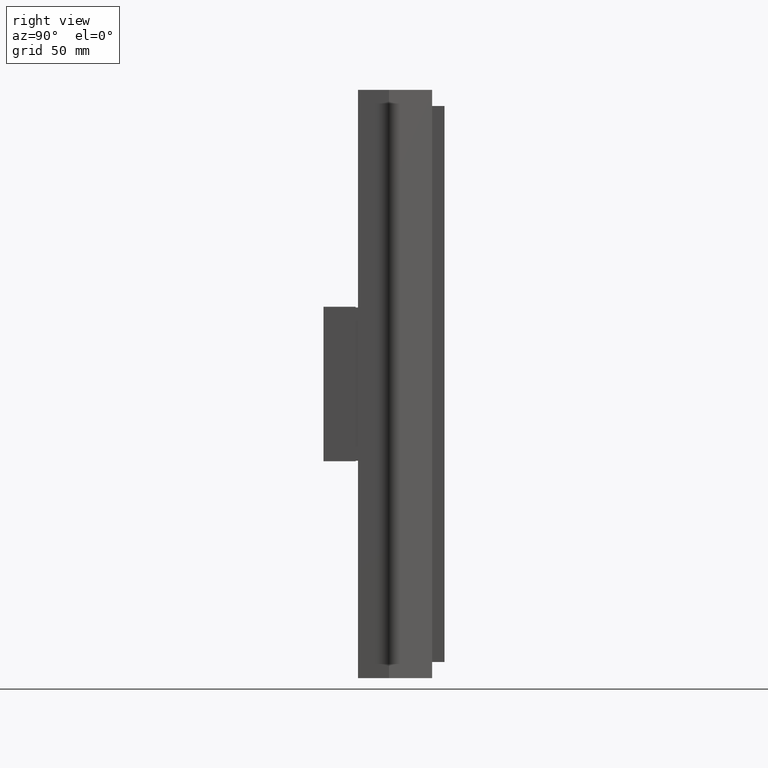
[diagram: clean part render]
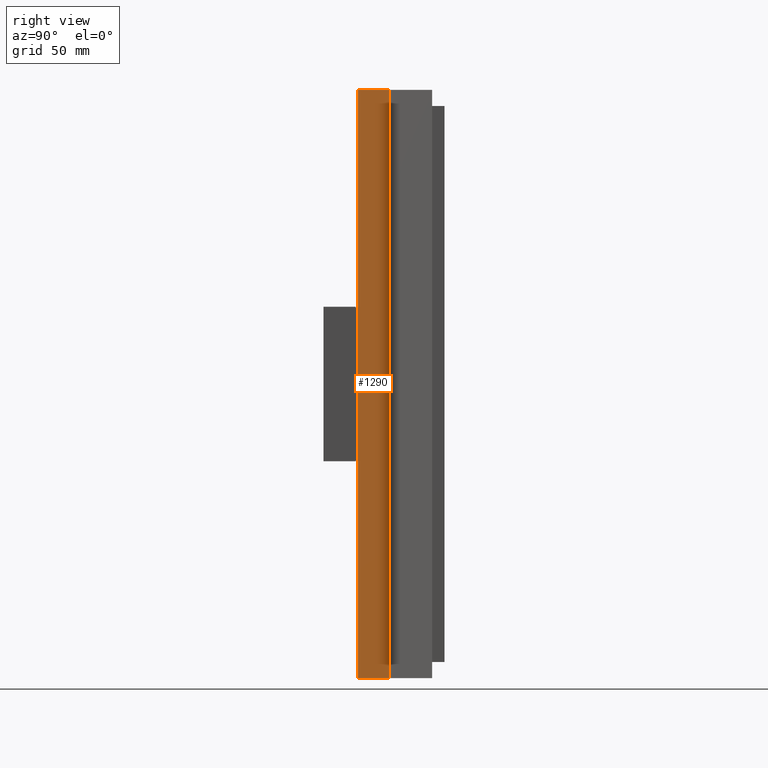
[diagram: same view with one face highlighted and labeled with its STEP entity id]
A machine part, right view. The second image highlights one B-rep face of the part: STEP entity #1290.
In plain terms, the highlighted planar face has unit normal (-1, 0, 0).
Its self-contained STEP definition (entity closure, byte-faithful):
#86 = VECTOR ( 'NONE', #1406, 1000.000000000000000 ) ;
#136 = CARTESIAN_POINT ( 'NONE',  ( 20.88361753920343500, -34.99999999999998600, 238.0000000000000000 ) ) ;
#413 = VERTEX_POINT ( 'NONE', #1110 ) ;
#430 = ORIENTED_EDGE ( 'NONE', *, *, #2039, .F. ) ;
#472 = ORIENTED_EDGE ( 'NONE', *, *, #2876, .F. ) ;
#500 = DIRECTION ( 'NONE',  ( -0.0000000000000000000, 1.000000000000000000, -0.0000000000000000000 ) ) ;
#532 = EDGE_CURVE ( 'NONE', #1325, #829, #1178, .T. ) ;
#829 = VERTEX_POINT ( 'NONE', #2090 ) ;
#1086 = CARTESIAN_POINT ( 'NONE',  ( 20.88361753920343500, -34.99999999999998600, -238.0000000000000000 ) ) ;
#1110 = CARTESIAN_POINT ( 'NONE',  ( 20.88361753920343500, -34.99999999999998600, 238.0000000000000000 ) ) ;
#1120 = ORIENTED_EDGE ( 'NONE', *, *, #2830, .T. ) ;
#1176 = CARTESIAN_POINT ( 'NONE',  ( 20.88361753920343500, -34.99999999999998600, 238.0000000000000000 ) ) ;
#1178 = LINE ( 'NONE', #1086, #1199 ) ;
#1199 = VECTOR ( 'NONE', #500, 1000.000000000000000 ) ;
#1290 = ADVANCED_FACE ( 'NONE', ( #2302 ), #1348, .F. ) ;
#1325 = VERTEX_POINT ( 'NONE', #2803 ) ;
#1348 = PLANE ( 'NONE',  #1489 ) ;
#1355 = EDGE_LOOP ( 'NONE', ( #2102, #472, #430, #1120 ) ) ;
#1406 = DIRECTION ( 'NONE',  ( -0.0000000000000000000, -0.0000000000000000000, -1.000000000000000000 ) ) ;
#1439 = LINE ( 'NONE', #2705, #86 ) ;
#1489 = AXIS2_PLACEMENT_3D ( 'NONE', #1176, #2367, #2913 ) ;
#1521 = CARTESIAN_POINT ( 'NONE',  ( 20.88361753920343500, -34.99999999999998600, 238.0000000000000000 ) ) ;
#1616 = VERTEX_POINT ( 'NONE', #1844 ) ;
#1635 = LINE ( 'NONE', #1521, #2586 ) ;
#1729 = DIRECTION ( 'NONE',  ( -0.0000000000000000000, -0.0000000000000000000, -1.000000000000000000 ) ) ;
#1844 = CARTESIAN_POINT ( 'NONE',  ( 20.88361753920343500, -59.99999999999998600, 238.0000000000000000 ) ) ;
#2039 = EDGE_CURVE ( 'NONE', #1616, #413, #2597, .T. ) ;
#2090 = CARTESIAN_POINT ( 'NONE',  ( 20.88361753920343500, -34.99999999999998600, -238.0000000000000000 ) ) ;
#2102 = ORIENTED_EDGE ( 'NONE', *, *, #532, .T. ) ;
#2302 = FACE_OUTER_BOUND ( 'NONE', #1355, .T. ) ;
#2367 = DIRECTION ( 'NONE',  ( -1.000000000000000000, 0.0000000000000000000, 0.0000000000000000000 ) ) ;
#2432 = VECTOR ( 'NONE', #2661, 1000.000000000000000 ) ;
#2586 = VECTOR ( 'NONE', #1729, 1000.000000000000000 ) ;
#2597 = LINE ( 'NONE', #136, #2432 ) ;
#2661 = DIRECTION ( 'NONE',  ( -0.0000000000000000000, 1.000000000000000000, -0.0000000000000000000 ) ) ;
#2705 = CARTESIAN_POINT ( 'NONE',  ( 20.88361753920343500, -59.99999999999998600, 238.0000000000000000 ) ) ;
#2803 = CARTESIAN_POINT ( 'NONE',  ( 20.88361753920343500, -59.99999999999998600, -238.0000000000000000 ) ) ;
#2830 = EDGE_CURVE ( 'NONE', #1616, #1325, #1439, .T. ) ;
#2876 = EDGE_CURVE ( 'NONE', #413, #829, #1635, .T. ) ;
#2913 = DIRECTION ( 'NONE',  ( 0.0000000000000000000, 0.0000000000000000000, 1.000000000000000000 ) ) ;